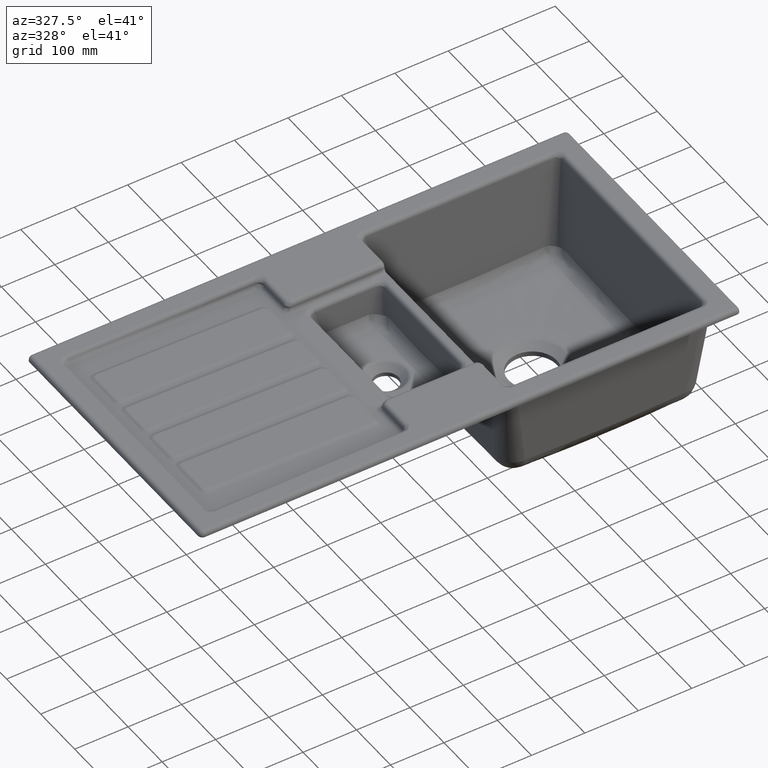
[diagram: clean part render]
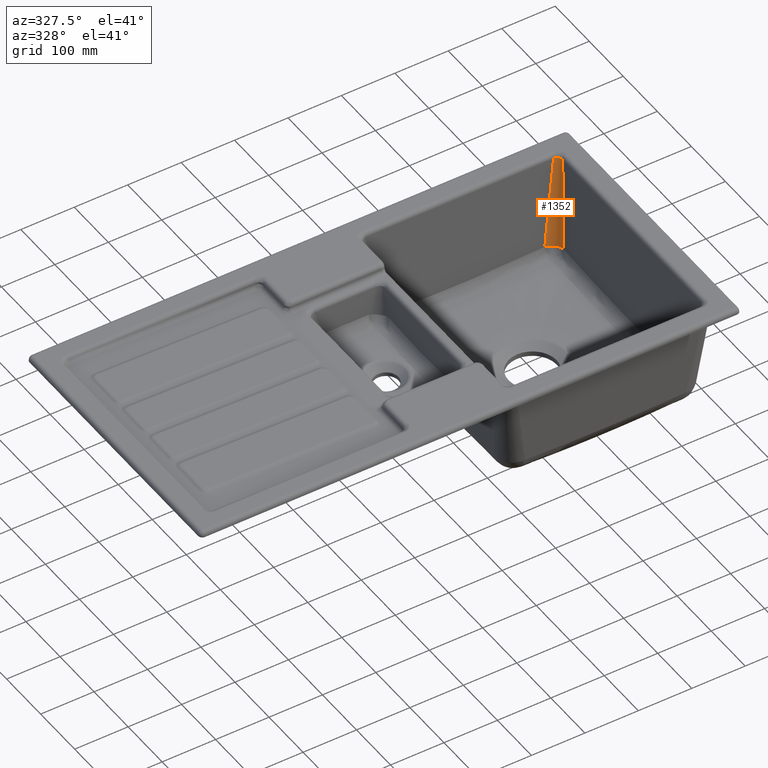
[diagram: same view with one face highlighted and labeled with its STEP entity id]
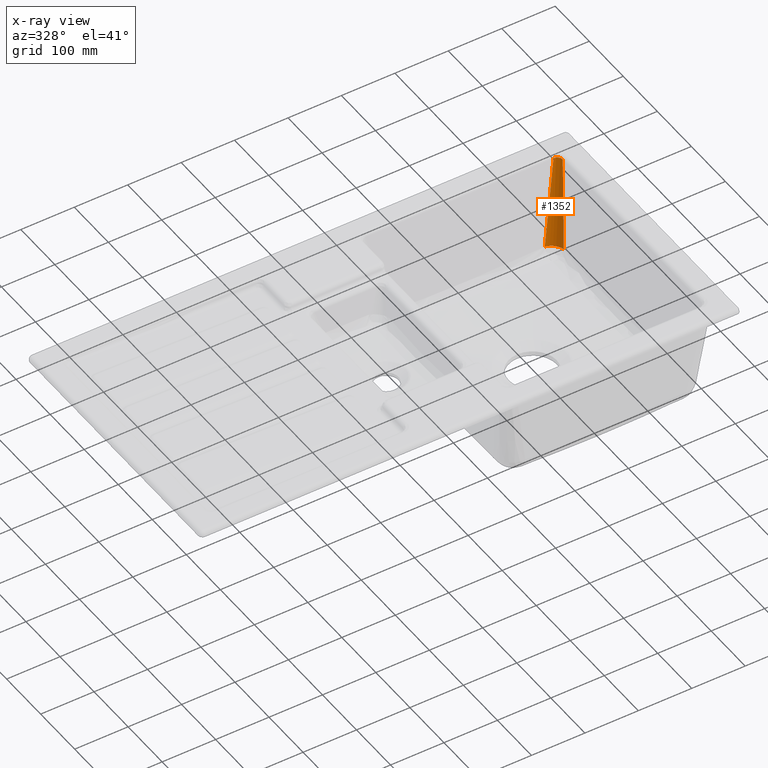
[diagram: x-ray of the same camera — body ghosted, the highlighted face saturated]
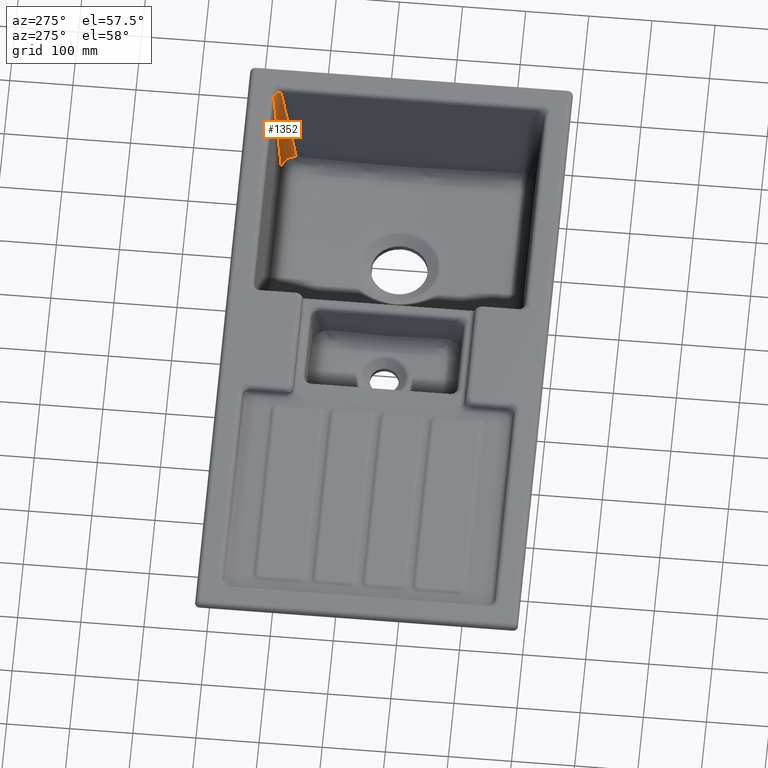
[diagram: same view with one face highlighted and labeled with its STEP entity id]
A machine part, auxiliary view. The second image highlights one B-rep face of the part: STEP entity #1352.
The next image is the same camera in x-ray: the body ghosted, the highlighted face saturated — about 0% of this face is hidden behind the body in this view.
A second angle (auxiliary view) of the same face is appended — the face is thin or edge-on in the first view.
In plain terms, the highlighted face is a freeform B-spline surface patch.
Its self-contained STEP definition (entity closure, byte-faithful):
#232=(
BOUNDED_SURFACE()
B_SPLINE_SURFACE(2,3,((#18479,#18480,#18481,#18482,#18483,#18484,#18485,
#18486),(#18487,#18488,#18489,#18490,#18491,#18492,#18493,#18494),(#18495,
#18496,#18497,#18498,#18499,#18500,#18501,#18502)),.UNSPECIFIED.,.F.,.F.,
 .F.)
B_SPLINE_SURFACE_WITH_KNOTS((3,3),(4,2,2,4),(0.,1.),(0.,0.145236587440075,
0.85290346833329,1.),.UNSPECIFIED.)
GEOMETRIC_REPRESENTATION_ITEM()
RATIONAL_B_SPLINE_SURFACE(((1.,1.,1.,1.,1.,1.,1.,1.),(0.709787335578022,
0.709787335578022,0.709787335578022,0.709787335578022,0.709787335578022,
0.709787335578022,0.709787335578022,0.709787335578022),(1.,1.,1.,1.,1.,
1.,1.,1.)))
REPRESENTATION_ITEM('')
SURFACE()
);
#577=FACE_OUTER_BOUND('',#1996,.T.);
#884=(
BOUNDED_CURVE()
B_SPLINE_CURVE(3,(#15946,#15947,#15948,#15949,#15950,#15951,#15952,#15953,
#15954,#15955,#15956,#15957),.UNSPECIFIED.,.F.,.F.)
B_SPLINE_CURVE_WITH_KNOTS((4,2,2,2,2,4),(0.,0.25,0.375,0.5,0.75,1.),
 .UNSPECIFIED.)
CURVE()
GEOMETRIC_REPRESENTATION_ITEM()
RATIONAL_B_SPLINE_CURVE((1.,1.,1.,1.,1.,1.,1.,1.,1.,1.,1.,1.))
REPRESENTATION_ITEM('')
);
#1352=ADVANCED_FACE('',(#577),#232,.F.);
#1996=EDGE_LOOP('',(#3618,#3619,#3620,#3621));
#3618=ORIENTED_EDGE('',*,*,#5435,.F.);
#3619=ORIENTED_EDGE('',*,*,#5436,.T.);
#3620=ORIENTED_EDGE('',*,*,#5387,.F.);
#3621=ORIENTED_EDGE('',*,*,#5304,.F.);
#4437=VERTEX_POINT('',#15442);
#4466=VERTEX_POINT('',#15905);
#4511=VERTEX_POINT('',#17977);
#4534=VERTEX_POINT('',#18463);
#5304=EDGE_CURVE('',#4466,#4437,#884,.T.);
#5387=EDGE_CURVE('',#4437,#4511,#6138,.T.);
#5435=EDGE_CURVE('',#4534,#4466,#6168,.T.);
#5436=EDGE_CURVE('',#4534,#4511,#6169,.T.);
#6138=B_SPLINE_CURVE_WITH_KNOTS('',3,(#17973,#17974,#17975,#17976),
 .UNSPECIFIED.,.F.,.F.,(4,4),(0.,1.),.UNSPECIFIED.);
#6168=B_SPLINE_CURVE_WITH_KNOTS('',3,(#18464,#18465,#18466,#18467),
 .UNSPECIFIED.,.F.,.F.,(4,4),(0.,1.),.UNSPECIFIED.);
#6169=B_SPLINE_CURVE_WITH_KNOTS('',3,(#18469,#18470,#18471,#18472,#18473,
#18474,#18475,#18476,#18477,#18478),.UNSPECIFIED.,.F.,.F.,(4,2,2,2,4),(0.,
0.25,0.5,0.75,1.),.UNSPECIFIED.);
#15442=CARTESIAN_POINT('',(933.453438256744,455.154697237951,-169.682587020544));
#15905=CARTESIAN_POINT('',(955.153383697772,433.45109122863,-169.69760085349));
#15946=CARTESIAN_POINT('',(955.153383697772,433.451091228631,-169.697600853491));
#15947=CARTESIAN_POINT('',(955.118220936338,436.354380623485,-170.099513055791));
#15948=CARTESIAN_POINT('',(954.492204090983,439.190726371849,-170.407631614884));
#15949=CARTESIAN_POINT('',(952.821841790866,443.075326833404,-170.715098081728));
#15950=CARTESIAN_POINT('',(952.151223273761,444.296321743613,-170.791235763692));
#15951=CARTESIAN_POINT('',(950.585918684178,446.605339648112,-170.89360955556));
#15952=CARTESIAN_POINT('',(949.684393778329,447.696049944273,-170.919263555405));
#15953=CARTESIAN_POINT('',(946.743895485388,450.641905516738,-170.917878399324));
#15954=CARTESIAN_POINT('',(944.389134700683,452.252760257298,-170.812805537356));
#15955=CARTESIAN_POINT('',(939.239270402064,454.477819252833,-170.401409350191));
#15956=CARTESIAN_POINT('',(936.378234379431,455.119094790156,-170.089524860947));
#15957=CARTESIAN_POINT('',(933.453438256748,455.154697237951,-169.682587020544));
#17973=CARTESIAN_POINT('',(933.453438256743,455.154697237951,-169.682587020544));
#17974=CARTESIAN_POINT('',(941.914747112063,459.890162094436,-115.555976033036));
#17975=CARTESIAN_POINT('',(950.376055967383,464.625626950921,-61.4293650455271));
#17976=CARTESIAN_POINT('',(958.837364822704,469.361091807406,-7.30275405801858));
#17977=CARTESIAN_POINT('',(958.837364822704,469.361091807406,-7.30275405801861));
#18463=CARTESIAN_POINT('',(969.361091807405,458.837364822704,-7.3027540580187));
#18464=CARTESIAN_POINT('',(969.361091807405,458.837364822704,-7.30275405801854));
#18465=CARTESIAN_POINT('',(964.625189104194,450.375273624679,-61.4343696565091));
#18466=CARTESIAN_POINT('',(959.889286400983,441.913182426655,-115.565985255));
#18467=CARTESIAN_POINT('',(955.153383697772,433.45109122863,-169.69760085349));
#18469=CARTESIAN_POINT('',(969.361091807406,458.837364822704,-7.30275405801877));
#18470=CARTESIAN_POINT('',(969.375824222084,460.325080178077,-7.13436178769565));
#18471=CARTESIAN_POINT('',(969.073317338449,461.808228522772,-7.01282006021009));
#18472=CARTESIAN_POINT('',(967.976872738606,464.397766358248,-6.84378974333289));
#18473=CARTESIAN_POINT('',(967.193502310455,465.498403812207,-6.7967224338363));
#18474=CARTESIAN_POINT('',(965.491344037799,467.199052443616,-6.7969510956614));
#18475=CARTESIAN_POINT('',(964.391888057336,467.98011329744,-6.84409986511074));
#18476=CARTESIAN_POINT('',(961.804659325041,469.074075986319,-7.0131150632658));
#18477=CARTESIAN_POINT('',(960.323291008289,469.375806504402,-7.13456430173022));
#18478=CARTESIAN_POINT('',(958.837364822704,469.361091807406,-7.30275405801873));
#18479=CARTESIAN_POINT('',(966.149132384987,473.453203196084,39.4702931433005));
#18480=CARTESIAN_POINT('',(964.137139828931,472.327169363301,26.5996675399169));
#18481=CARTESIAN_POINT('',(962.125147272875,471.201135530519,13.7290419365333));
#18482=CARTESIAN_POINT('',(950.309698703284,464.588489375932,-61.8538494700448));
#18483=CARTESIAN_POINT('',(940.506242689749,459.101877054128,-124.566115273239));
#18484=CARTESIAN_POINT('',(928.665027927185,452.47481056536,-200.313831853736));
#18485=CARTESIAN_POINT('',(926.627269178156,451.334356398396,-213.349282631039));
#18486=CARTESIAN_POINT('',(924.589510429127,450.193902231432,-226.384733408341));
#18487=CARTESIAN_POINT('',(973.398138847784,473.398138847784,38.8409047622203));
#18488=CARTESIAN_POINT('',(972.265425898523,472.265425898523,25.8939365081468));
#18489=CARTESIAN_POINT('',(971.132712949261,471.132712949262,12.9469682540734));
#18490=CARTESIAN_POINT('',(964.480843609177,464.480843609177,-63.084246214226));
#18491=CARTESIAN_POINT('',(958.961687218354,458.961687218354,-126.168492428452));
#18492=CARTESIAN_POINT('',(952.295312009276,452.295312009277,-202.36550973804));
#18493=CARTESIAN_POINT('',(951.148093191022,451.148093191022,-215.478280833401));
#18494=CARTESIAN_POINT('',(950.000874372767,450.000874372767,-228.591051928763));
#18495=CARTESIAN_POINT('',(973.453203196084,466.149132384988,39.4702931433005));
#18496=CARTESIAN_POINT('',(972.327169363301,464.137139828931,26.5996675399169));
#18497=CARTESIAN_POINT('',(971.201135530519,462.125147272875,13.7290419365333));
#18498=CARTESIAN_POINT('',(964.588489375932,450.309698703284,-61.8538494700448));
#18499=CARTESIAN_POINT('',(959.101877054128,440.506242689749,-124.566115273239));
#18500=CARTESIAN_POINT('',(952.47481056536,428.665027927185,-200.313831853736));
#18501=CARTESIAN_POINT('',(951.334356398396,426.627269178156,-213.349282631039));
#18502=CARTESIAN_POINT('',(950.193902231431,424.589510429127,-226.384733408341));